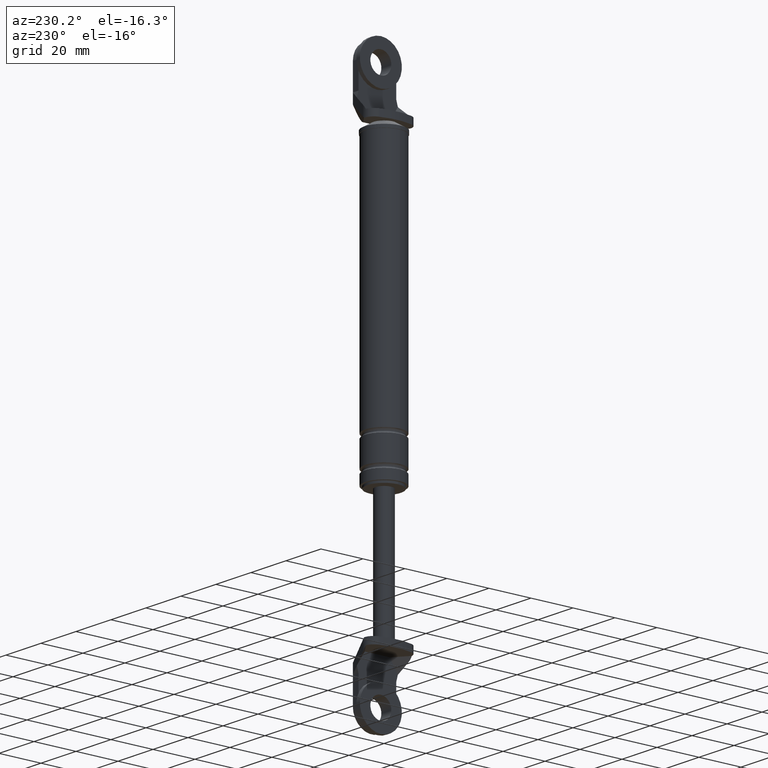
[diagram: clean part render]
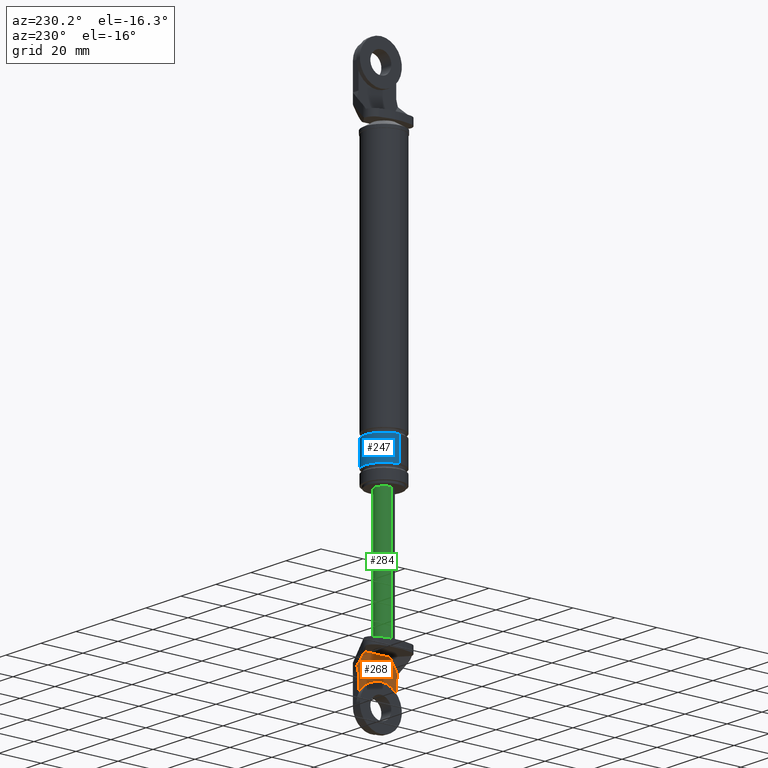
[diagram: same view with three faces highlighted in distinct colors, each labeled with its STEP entity id]
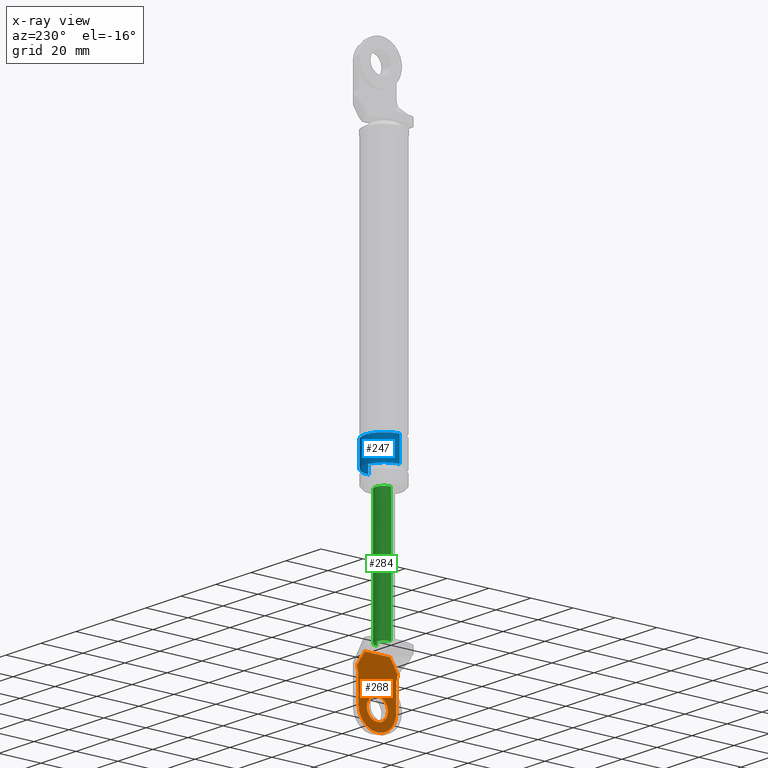
[diagram: x-ray of the same camera — body ghosted, the three highlighted faces saturated]
A machine part, auxiliary view with three faces highlighted in distinct colors.
The next image is the same camera in x-ray (body ghosted, the three faces saturated) — at least one of them is partly hidden behind the body in this view.
Their STEP definitions:

[orange] entity #268 — the highlighted planar face has unit normal (1, 0, 0).
#268=ADVANCED_FACE('',(#935,#936),#934,.F.);
#934=PLANE('',#1623);
#935=FACE_OUTER_BOUND('',#1624,.T.);
#936=FACE_BOUND('',#1625,.T.);
#1620=CARTESIAN_POINT('',(3.80000300000E+000,-1.16951792999E+001,-1.44980015732E+002));
#1621=DIRECTION('',(1.00000000000E+000,0.00000000000E+000,0.00000000000E+000));
#1622=DIRECTION('',(0.00000000000E+000,1.00000000000E+000,0.00000000000E+000));
#1623=AXIS2_PLACEMENT_3D('',#1620,#1621,#1622);
#1624=EDGE_LOOP('',(#2057,#2058,#2059,#2060,#2061,#2062,#2063,#2064,#2065,#2066));
#1625=EDGE_LOOP('',(#2067,#2068));
#2057=ORIENTED_EDGE('',*,*,#2313,.T.);
#2058=ORIENTED_EDGE('',*,*,#2321,.F.);
#2059=ORIENTED_EDGE('',*,*,#2322,.F.);
#2060=ORIENTED_EDGE('',*,*,#2296,.T.);
#2061=ORIENTED_EDGE('',*,*,#2299,.T.);
#2062=ORIENTED_EDGE('',*,*,#2292,.T.);
#2063=ORIENTED_EDGE('',*,*,#2323,.F.);
#2064=ORIENTED_EDGE('',*,*,#2324,.F.);
#2065=ORIENTED_EDGE('',*,*,#2319,.T.);
#2066=ORIENTED_EDGE('',*,*,#2316,.F.);
#2067=ORIENTED_EDGE('',*,*,#2325,.T.);
#2068=ORIENTED_EDGE('',*,*,#2326,.T.);
#2292=EDGE_CURVE('',#3248,#3241,#3249,.T.);
#2296=EDGE_CURVE('',#3276,#3269,#3277,.T.);
#2299=EDGE_CURVE('',#3269,#3248,#3296,.T.);
#2313=EDGE_CURVE('',#3392,#3385,#3393,.T.);
#2316=EDGE_CURVE('',#3392,#3412,#3413,.T.);
#2319=EDGE_CURVE('',#3432,#3412,#3433,.T.);
#2321=EDGE_CURVE('',#3445,#3385,#3446,.T.);
#2322=EDGE_CURVE('',#3276,#3445,#3452,.T.);
#2323=EDGE_CURVE('',#3458,#3241,#3459,.T.);
#2324=EDGE_CURVE('',#3432,#3458,#3465,.T.);
#2325=EDGE_CURVE('',#3471,#3472,#3473,.T.);
#2326=EDGE_CURVE('',#3472,#3471,#3479,.T.);
#3241=VERTEX_POINT('',#4213);
#3248=VERTEX_POINT('',#4217);
#3249=LINE('',#4218,#4219);
#3269=VERTEX_POINT('',#4229);
#3276=VERTEX_POINT('',#4233);
#3277=LINE('',#4234,#4235);
#3296=LINE('',#4245,#4246);
#3385=VERTEX_POINT('',#4297);
#3392=VERTEX_POINT('',#4301);
#3393=LINE('',#4302,#4303);
#3412=VERTEX_POINT('',#4313);
#3413=CIRCLE('',#4317,9.00000000000E+000);
#3432=VERTEX_POINT('',#4325);
#3433=LINE('',#4326,#4327);
#3445=VERTEX_POINT('',#4332);
#3446=LINE('',#4333,#4334);
#3452=LINE('',#4336,#4337);
#3458=VERTEX_POINT('',#4339);
#3459=LINE('',#4340,#4341);
#3465=LINE('',#4343,#4344);
#3471=VERTEX_POINT('',#4346);
#3472=VERTEX_POINT('',#4347);
#3473=CIRCLE('',#4351,5.00000000000E+000);
#3479=CIRCLE('',#4355,5.00000000000E+000);
#4213=CARTESIAN_POINT('',(3.80000300000E+000,9.74598274994E+000,-1.18193590612E+002));
#4217=CARTESIAN_POINT('',(3.80000300000E+000,6.00000000000E+000,-1.12200012000E+002));
#4218=CARTESIAN_POINT('',(3.80000300000E+000,6.00000000000E+000,-1.12200012000E+002));
#4219=VECTOR('',#4220,7.06791138451E+000);
#4220=DIRECTION('',(0.00000000000E+000,5.29998544994E-001,-8.47998550886E-001));
#4229=CARTESIAN_POINT('',(3.80000300000E+000,-6.00000000000E+000,-1.12200012000E+002));
#4233=CARTESIAN_POINT('',(3.80000300000E+000,-9.74598274994E+000,-1.18193590612E+002));
#4234=CARTESIAN_POINT('',(3.80000300000E+000,-9.74598274994E+000,-1.18193590612E+002));
#4235=VECTOR('',#4236,7.06791138451E+000);
#4236=DIRECTION('',(0.00000000000E+000,5.29998544994E-001,8.47998550886E-001));
#4245=CARTESIAN_POINT('',(3.80000300000E+000,-6.00000000000E+000,-1.12200012000E+002));
#4246=VECTOR('',#4247,1.20000000000E+001);
#4247=DIRECTION('',(0.00000000000E+000,1.00000000000E+000,0.00000000000E+000));
#4297=CARTESIAN_POINT('',(3.80000300000E+000,-9.00000000000E+000,-1.21000015000E+002));
#4301=CARTESIAN_POINT('',(3.80000300000E+000,-9.00000000000E+000,-1.33000014215E+002));
#4302=CARTESIAN_POINT('',(3.80000300000E+000,-9.00000000000E+000,-1.33000014215E+002));
#4303=VECTOR('',#4304,1.19999992146E+001);
#4304=DIRECTION('',(0.00000000000E+000,0.00000000000E+000,1.00000000000E+000));
#4313=CARTESIAN_POINT('',(3.80000300000E+000,9.00000000000E+000,-1.33000015000E+002));
#4314=CARTESIAN_POINT('',(3.80000300000E+000,0.00000000000E+000,-1.33000015000E+002));
#4315=DIRECTION('',(1.00000000000E+000,0.00000000000E+000,0.00000000000E+000));
#4316=DIRECTION('',(-0.00000000000E+000,-0.00000000000E+000,1.00000000000E+000));
#4317=AXIS2_PLACEMENT_3D('',#4314,#4315,#4316);
#4325=CARTESIAN_POINT('',(3.80000300000E+000,9.00000000000E+000,-1.21000015000E+002));
#4326=CARTESIAN_POINT('',(3.80000300000E+000,9.00000000000E+000,-1.21000015000E+002));
#4327=VECTOR('',#4328,1.20000000000E+001);
#4328=DIRECTION('',(0.00000000000E+000,0.00000000000E+000,-1.00000000000E+000));
#4332=CARTESIAN_POINT('',(3.80000300000E+000,-9.74598274994E+000,-1.18215969476E+002));
#4333=CARTESIAN_POINT('',(3.80000300000E+000,-9.74598274994E+000,-1.18215969476E+002));
#4334=VECTOR('',#4335,2.88225601652E+000);
#4335=DIRECTION('',(0.00000000000E+000,2.58819045103E-001,-9.65925826289E-001));
#4336=CARTESIAN_POINT('',(3.80000300000E+000,-9.74598274994E+000,-1.18193590612E+002));
#4337=VECTOR('',#4338,2.23788638129E-002);
#4338=DIRECTION('',(0.00000000000E+000,0.00000000000E+000,-1.00000000000E+000));
#4339=CARTESIAN_POINT('',(3.80000300000E+000,9.74598274994E+000,-1.18215969476E+002));
#4340=CARTESIAN_POINT('',(3.80000300000E+000,9.74598274994E+000,-1.18215969476E+002));
#4341=VECTOR('',#4342,2.23788638136E-002);
#4342=DIRECTION('',(0.00000000000E+000,0.00000000000E+000,1.00000000000E+000));
#4343=CARTESIAN_POINT('',(3.80000300000E+000,9.00000000000E+000,-1.21000015000E+002));
#4344=VECTOR('',#4345,2.88225601652E+000);
#4345=DIRECTION('',(0.00000000000E+000,2.58819045103E-001,9.65925826289E-001));
#4346=CARTESIAN_POINT('',(3.80000300000E+000,0.00000000000E+000,-1.38000015000E+002));
#4347=CARTESIAN_POINT('',(3.80000300000E+000,2.96059473233E-016,-1.28000015000E+002));
#4348=CARTESIAN_POINT('',(3.80000300000E+000,0.00000000000E+000,-1.33000015000E+002));
#4349=DIRECTION('',(1.00000000000E+000,0.00000000000E+000,0.00000000000E+000));
#4350=DIRECTION('',(0.00000000000E+000,-1.22460635382E-016,-1.00000000000E+000));
#4351=AXIS2_PLACEMENT_3D('',#4348,#4349,#4350);
#4352=CARTESIAN_POINT('',(3.80000300000E+000,0.00000000000E+000,-1.33000015000E+002));
#4353=DIRECTION('',(1.00000000000E+000,0.00000000000E+000,0.00000000000E+000));
#4354=DIRECTION('',(0.00000000000E+000,-1.22460635382E-016,-1.00000000000E+000));
#4355=AXIS2_PLACEMENT_3D('',#4352,#4353,#4354);

[blue] entity #247 — the highlighted cylindrical surface (edge-blend (fillet) strip) has radius 9 mm, axis along (0, 0, 1).
#247=ADVANCED_FACE('',(#725),#724,.T.);
#724=CYLINDRICAL_SURFACE('',#1464,9.00000000000E+000);
#725=FACE_OUTER_BOUND('',#1465,.T.);
#1461=CARTESIAN_POINT('',(0.00000000000E+000,3.58204186421E-014,0.00000000000E+000));
#1462=DIRECTION('',(-0.00000000000E+000,-0.00000000000E+000,1.00000000000E+000));
#1463=DIRECTION('',(1.00000000000E+000,0.00000000000E+000,0.00000000000E+000));
#1464=AXIS2_PLACEMENT_3D('',#1461,#1462,#1463);
#1465=EDGE_LOOP('',(#1966,#1967,#1968,#1969));
#1966=ORIENTED_EDGE('',*,*,#2266,.T.);
#1967=ORIENTED_EDGE('',*,*,#2269,.F.);
#1968=ORIENTED_EDGE('',*,*,#2270,.F.);
#1969=ORIENTED_EDGE('',*,*,#2271,.T.);
#2266=EDGE_CURVE('',#3079,#3072,#3080,.T.);
#2269=EDGE_CURVE('',#3098,#3072,#3099,.T.);
#2270=EDGE_CURVE('',#3105,#3098,#3106,.T.);
#2271=EDGE_CURVE('',#3105,#3079,#3112,.T.);
#3072=VERTEX_POINT('',#4117);
#3079=VERTEX_POINT('',#4123);
#3080=CIRCLE('',#4127,9.00000000000E+000);
#3098=VERTEX_POINT('',#4137);
#3099=(BOUNDED_CURVE() B_SPLINE_CURVE(1,(#4138,#4139),.UNSPECIFIED.,.F.,.F.) B_SPLINE_CURVE_WITH_KNOTS((2,2),(8.33333343261E-002,9.16666667006E-001),.UNSPECIFIED.) CURVE() GEOMETRIC_REPRESENTATION_ITEM() RATIONAL_B_SPLINE_CURVE((1.00000000000E+000,1.00000000000E+000)) REPRESENTATION_ITEM('') );
#3105=VERTEX_POINT('',#4140);
#3106=CIRCLE('',#4144,9.00000000000E+000);
#3112=(BOUNDED_CURVE() B_SPLINE_CURVE(1,(#4145,#4146),.UNSPECIFIED.,.F.,.F.) B_SPLINE_CURVE_WITH_KNOTS((2,2),(8.33333333333E-002,9.16666666667E-001),.UNSPECIFIED.) CURVE() GEOMETRIC_REPRESENTATION_ITEM() RATIONAL_B_SPLINE_CURVE((7.50000000000E-001,7.50000000000E-001)) REPRESENTATION_ITEM('') );
#4117=CARTESIAN_POINT('',(9.00000000000E+000,3.61192557345E-014,-3.10000150000E+001));
#4123=CARTESIAN_POINT('',(-9.00000000000E+000,3.58204186421E-014,-3.10000150000E+001));
#4124=CARTESIAN_POINT('',(0.00000000000E+000,3.58204186421E-014,-3.10000150000E+001));
#4125=DIRECTION('',(-0.00000000000E+000,0.00000000000E+000,-1.00000000000E+000));
#4126=DIRECTION('',(-1.00000000000E+000,-1.22460635382E-016,0.00000000000E+000));
#4127=AXIS2_PLACEMENT_3D('',#4124,#4125,#4126);
#4137=CARTESIAN_POINT('',(9.00000000000E+000,3.61192557345E-014,-4.25000150000E+001));
#4138=CARTESIAN_POINT('',(9.00000000000E+000,3.58204186421E-014,-4.25000149863E+001));
#4139=CARTESIAN_POINT('',(9.00000000000E+000,3.58204186421E-014,-3.10000149953E+001));
#4140=CARTESIAN_POINT('',(-9.00000000000E+000,3.58204186421E-014,-4.25000150000E+001));
#4141=CARTESIAN_POINT('',(0.00000000000E+000,3.58204186421E-014,-4.25000150000E+001));
#4142=DIRECTION('',(-0.00000000000E+000,0.00000000000E+000,-1.00000000000E+000));
#4143=DIRECTION('',(-1.00000000000E+000,-1.22460635382E-016,0.00000000000E+000));
#4144=AXIS2_PLACEMENT_3D('',#4141,#4142,#4143);
#4145=CARTESIAN_POINT('',(-9.00000000000E+000,3.52310773148E-014,-4.25000150000E+001));
#4146=CARTESIAN_POINT('',(-9.00000000000E+000,3.52310773148E-014,-3.10000150000E+001));

[green] entity #284 — the highlighted cylindrical surface (edge-blend (fillet) strip) has radius 4 mm, axis along (0, 0, 1).
#284=ADVANCED_FACE('',(#1097),#1096,.T.);
#1096=CYLINDRICAL_SURFACE('',#1755,4.00000000000E+000);
#1097=FACE_OUTER_BOUND('',#1756,.T.);
#1752=CARTESIAN_POINT('',(0.00000000000E+000,3.58204186421E-014,0.00000000000E+000));
#1753=DIRECTION('',(-0.00000000000E+000,-0.00000000000E+000,1.00000000000E+000));
#1754=DIRECTION('',(1.00000000000E+000,-0.00000000000E+000,-0.00000000000E+000));
#1755=AXIS2_PLACEMENT_3D('',#1752,#1753,#1754);
#1756=EDGE_LOOP('',(#2148,#2149,#2150,#2151,#2152));
#2148=ORIENTED_EDGE('',*,*,#2350,.T.);
#2149=ORIENTED_EDGE('',*,*,#2354,.F.);
#2150=ORIENTED_EDGE('',*,*,#2338,.F.);
#2151=ORIENTED_EDGE('',*,*,#2342,.F.);
#2152=ORIENTED_EDGE('',*,*,#2355,.T.);
#2338=EDGE_CURVE('',#3206,#3556,#3557,.T.);
#2342=EDGE_CURVE('',#3575,#3206,#3582,.T.);
#2350=EDGE_CURVE('',#3627,#3626,#3634,.T.);
#2354=EDGE_CURVE('',#3556,#3626,#3658,.T.);
#2355=EDGE_CURVE('',#3575,#3627,#3664,.T.);
#3206=VERTEX_POINT('',#4192);
#3556=VERTEX_POINT('',#4400);
#3557=CIRCLE('',#4404,4.00000000000E+000);
#3575=VERTEX_POINT('',#4412);
#3582=CIRCLE('',#4420,4.00000000000E+000);
#3626=VERTEX_POINT('',#4444);
#3627=VERTEX_POINT('',#4445);
#3634=CIRCLE('',#4453,4.00000000000E+000);
#3658=(BOUNDED_CURVE() B_SPLINE_CURVE(1,(#4462,#4463),.UNSPECIFIED.,.F.,.F.) B_SPLINE_CURVE_WITH_KNOTS((2,2),(8.33333332085E-002,9.16666666222E-001),.UNSPECIFIED.) CURVE() GEOMETRIC_REPRESENTATION_ITEM() RATIONAL_B_SPLINE_CURVE((1.00000000000E+000,1.00000000000E+000)) REPRESENTATION_ITEM('') );
#3664=(BOUNDED_CURVE() B_SPLINE_CURVE(1,(#4464,#4465),.UNSPECIFIED.,.F.,.F.) B_SPLINE_CURVE_WITH_KNOTS((2,2),(8.33333333333E-002,9.16666666667E-001),.UNSPECIFIED.) CURVE() GEOMETRIC_REPRESENTATION_ITEM() RATIONAL_B_SPLINE_CURVE((7.50000000000E-001,7.50000000000E-001)) REPRESENTATION_ITEM('') );
#4192=CARTESIAN_POINT('',(2.00000000000E+000,3.46410161514E+000,-1.09000015000E+002));
#4400=CARTESIAN_POINT('',(4.00000000000E+000,3.70074341542E-014,-1.09000015000E+002));
#4401=CARTESIAN_POINT('',(0.00000000000E+000,3.58204186421E-014,-1.09000015000E+002));
#4402=DIRECTION('',(0.00000000000E+000,0.00000000000E+000,-1.00000000000E+000));
#4403=DIRECTION('',(5.00000000000E-001,8.66025403784E-001,0.00000000000E+000));
#4404=AXIS2_PLACEMENT_3D('',#4401,#4402,#4403);
#4412=CARTESIAN_POINT('',(-4.00000000000E+000,5.56983491356E-014,-1.09000015000E+002));
#4417=CARTESIAN_POINT('',(0.00000000000E+000,3.58204186421E-014,-1.09000015000E+002));
#4418=DIRECTION('',(0.00000000000E+000,0.00000000000E+000,-1.00000000000E+000));
#4419=DIRECTION('',(1.00000000000E+000,-0.00000000000E+000,-0.00000000000E+000));
#4420=AXIS2_PLACEMENT_3D('',#4417,#4418,#4419);
#4444=CARTESIAN_POINT('',(4.00000000000E+000,3.64153152077E-014,-5.00000150000E+001));
#4445=CARTESIAN_POINT('',(-4.00000000000E+000,3.58204186421E-014,-5.00000150000E+001));
#4450=CARTESIAN_POINT('',(0.00000000000E+000,3.58204186421E-014,-5.00000150000E+001));
#4451=DIRECTION('',(-0.00000000000E+000,0.00000000000E+000,-1.00000000000E+000));
#4452=DIRECTION('',(-1.00000000000E+000,-1.22460635382E-016,0.00000000000E+000));
#4453=AXIS2_PLACEMENT_3D('',#4450,#4451,#4452);
#4462=CARTESIAN_POINT('',(4.00000000000E+000,3.58204186421E-014,-1.09000015009E+002));
#4463=CARTESIAN_POINT('',(4.00000000000E+000,3.58204186421E-014,-5.00000150315E+001));
#4464=CARTESIAN_POINT('',(-4.00000000000E+000,3.58231962612E-014,-1.09000015000E+002));
#4465=CARTESIAN_POINT('',(-4.00000000000E+000,3.58231962612E-014,-5.00000150000E+001));